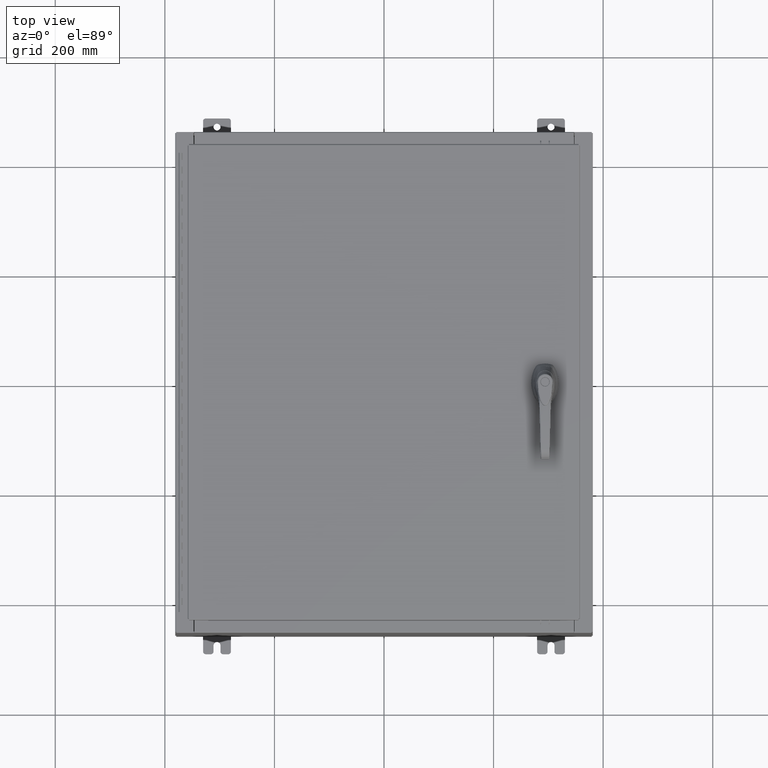
[diagram: clean part render]
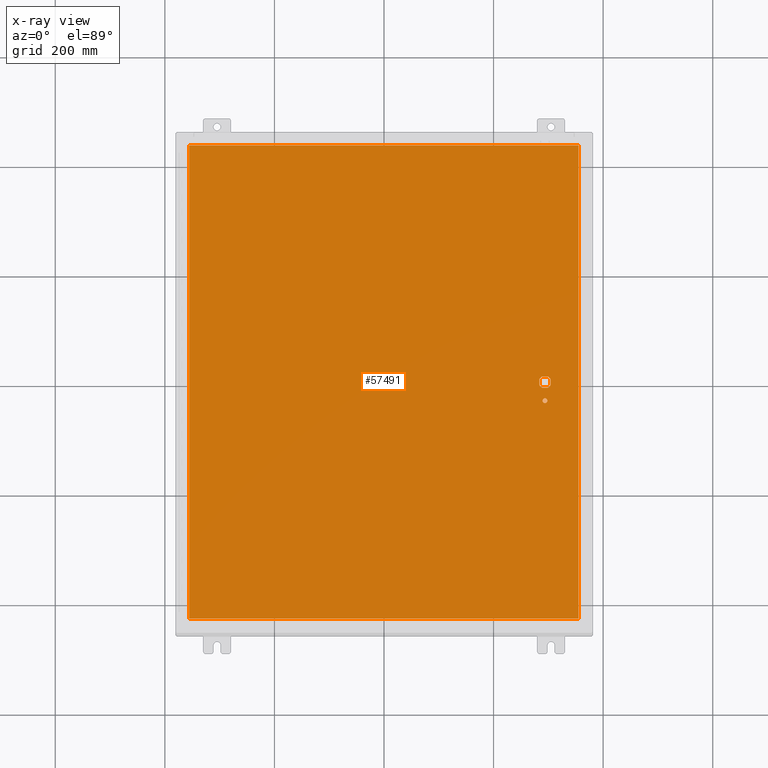
[diagram: x-ray — body ghosted, one internal face saturated and labeled with its STEP entity id]
A machine part, top view, then the same camera in x-ray: the body is ghosted and one INTERNAL B-rep face — a face not visible from any outside direction — is saturated and labeled: STEP entity #57491.
In plain terms, the highlighted planar face has unit normal (0, 0, -1).
Its self-contained STEP definition (entity closure, byte-faithful):
#648 = EDGE_CURVE ( 'NONE', #11602, #36808, #68440, .T. ) ;
#2140 = ORIENTED_EDGE ( 'NONE', *, *, #648, .T. ) ;
#2220 = DIRECTION ( 'NONE',  ( 0.0000000000000000000, 1.000000000000000000, 0.0000000000000000000 ) ) ;
#2813 = DIRECTION ( 'NONE',  ( -1.000000000000000000, 0.0000000000000000000, -0.0000000000000000000 ) ) ;
#4749 = CARTESIAN_POINT ( 'NONE',  ( 13.99029999999999200, -17.00630000000000000, -0.07470000000000019700 ) ) ;
#5164 = VERTEX_POINT ( 'NONE', #42438 ) ;
#5437 = EDGE_CURVE ( 'NONE', #59759, #22250, #50270, .T. ) ;
#5741 = CARTESIAN_POINT ( 'NONE',  ( -13.99030000000000700, -17.00630000000000000, -0.07470000000000000300 ) ) ;
#5778 = EDGE_CURVE ( 'NONE', #88298, #124138, #29412, .T. ) ;
#6575 = DIRECTION ( 'NONE',  ( -0.0000000000000000000, -0.0000000000000000000, 1.000000000000000000 ) ) ;
#6729 = VERTEX_POINT ( 'NONE', #44348 ) ;
#7899 = CIRCLE ( 'NONE', #88935, 0.4499999999999168000 ) ;
#8196 = CARTESIAN_POINT ( 'NONE',  ( 11.17500000000006600, 0.2002273707563075900, -0.07470000000000003000 ) ) ;
#9893 = CARTESIAN_POINT ( 'NONE',  ( 11.98099999999992000, 6.538620706741751200E-014, -0.07470000000000003000 ) ) ;
#10253 = VERTEX_POINT ( 'NONE', #21520 ) ;
#10455 = CARTESIAN_POINT ( 'NONE',  ( 11.57799999999999400, 0.0000000000000000000, -0.07470000000000003000 ) ) ;
#11602 = VERTEX_POINT ( 'NONE', #20144 ) ;
#12996 = CARTESIAN_POINT ( 'NONE',  ( -13.99030000000000700, 17.00630000000000300, -0.07470000000000000300 ) ) ;
#13148 = CARTESIAN_POINT ( 'NONE',  ( 11.37777262924368300, 0.4029999999999252000, -0.07470000000000003000 ) ) ;
#13664 = VERTEX_POINT ( 'NONE', #59369 ) ;
#15475 = ORIENTED_EDGE ( 'NONE', *, *, #124306, .T. ) ;
#17634 = CARTESIAN_POINT ( 'NONE',  ( 11.57799999999999400, 0.0000000000000000000, -0.07470000000000003000 ) ) ;
#19046 = EDGE_LOOP ( 'NONE', ( #51402, #23434 ) ) ;
#20144 = CARTESIAN_POINT ( 'NONE',  ( 11.77822737075630300, 0.4029999999999250300, -0.07470000000000003000 ) ) ;
#20190 = DIRECTION ( 'NONE',  ( -1.000000000000000000, -1.776356839400246700E-015, 0.0000000000000000000 ) ) ;
#20645 = FACE_BOUND ( 'NONE', #34324, .T. ) ;
#20672 = ORIENTED_EDGE ( 'NONE', *, *, #64721, .T. ) ;
#20971 = CARTESIAN_POINT ( 'NONE',  ( 11.17500000000006600, 0.0000000000000000000, -0.07470000000000003000 ) ) ;
#21275 = EDGE_CURVE ( 'NONE', #6729, #76020, #65052, .T. ) ;
#21464 = CIRCLE ( 'NONE', #51426, 0.4499999999999168000 ) ;
#21514 = ORIENTED_EDGE ( 'NONE', *, *, #22743, .T. ) ;
#21520 = CARTESIAN_POINT ( 'NONE',  ( 11.17500000000006600, -0.2002273707563079800, -0.07470000000000003000 ) ) ;
#22250 = VERTEX_POINT ( 'NONE', #107533 ) ;
#22743 = EDGE_CURVE ( 'NONE', #13664, #49090, #84314, .T. ) ;
#23434 = ORIENTED_EDGE ( 'NONE', *, *, #69700, .T. ) ;
#24490 = AXIS2_PLACEMENT_3D ( 'NONE', #50644, #117242, #2813 ) ;
#26452 = VECTOR ( 'NONE', #30092, 39.37007874015748100 ) ;
#27289 = DIRECTION ( 'NONE',  ( -1.000000000000000000, -5.329070518200740300E-015, 0.0000000000000000000 ) ) ;
#28423 = ORIENTED_EDGE ( 'NONE', *, *, #41251, .F. ) ;
#29412 = LINE ( 'NONE', #82272, #63817 ) ;
#30092 = DIRECTION ( 'NONE',  ( 1.000000000000000000, -0.0000000000000000000, -0.0000000000000000000 ) ) ;
#33388 = ORIENTED_EDGE ( 'NONE', *, *, #35231, .F. ) ;
#33569 = VERTEX_POINT ( 'NONE', #8196 ) ;
#34324 = EDGE_LOOP ( 'NONE', ( #20672, #51615, #95410, #2140, #15475, #47439, #68411, #21514 ) ) ;
#35231 = EDGE_CURVE ( 'NONE', #22250, #88298, #113476, .T. ) ;
#36496 = CIRCLE ( 'NONE', #112157, 0.4499999999999168000 ) ;
#36808 = VERTEX_POINT ( 'NONE', #13148 ) ;
#38508 = DIRECTION ( 'NONE',  ( -0.0000000000000000000, -0.0000000000000000000, 1.000000000000000000 ) ) ;
#41069 = PLANE ( 'NONE',  #24490 ) ;
#41251 = EDGE_CURVE ( 'NONE', #124138, #59759, #99654, .T. ) ;
#42438 = CARTESIAN_POINT ( 'NONE',  ( 11.74949999999999400, -1.338000000000000100, -0.07470000000000003000 ) ) ;
#42837 = VECTOR ( 'NONE', #116305, 39.37007874015748100 ) ;
#44348 = CARTESIAN_POINT ( 'NONE',  ( 11.98099999999992000, 0.2002273707563075900, -0.07470000000000003000 ) ) ;
#46001 = FACE_BOUND ( 'NONE', #19046, .T. ) ;
#46220 = DIRECTION ( 'NONE',  ( 1.000000000000000000, 0.0000000000000000000, 0.0000000000000000000 ) ) ;
#47275 = VECTOR ( 'NONE', #2220, 39.37007874015748100 ) ;
#47439 = ORIENTED_EDGE ( 'NONE', *, *, #50121, .T. ) ;
#48396 = CARTESIAN_POINT ( 'NONE',  ( 11.98099999999992000, -0.2002273707563067300, -0.07470000000000003000 ) ) ;
#49090 = VERTEX_POINT ( 'NONE', #96465 ) ;
#49803 = DIRECTION ( 'NONE',  ( -0.0000000000000000000, -0.0000000000000000000, 1.000000000000000000 ) ) ;
#50121 = EDGE_CURVE ( 'NONE', #33569, #10253, #93800, .T. ) ;
#50270 = LINE ( 'NONE', #4749, #47275 ) ;
#50280 = CIRCLE ( 'NONE', #65473, 0.1715000000000011500 ) ;
#50644 = CARTESIAN_POINT ( 'NONE',  ( 0.0000000000000000000, 0.0000000000000000000, -0.07470000000000000300 ) ) ;
#51048 = AXIS2_PLACEMENT_3D ( 'NONE', #107149, #49803, #116812 ) ;
#51402 = ORIENTED_EDGE ( 'NONE', *, *, #60190, .T. ) ;
#51426 = AXIS2_PLACEMENT_3D ( 'NONE', #17634, #84599, #27289 ) ;
#51615 = ORIENTED_EDGE ( 'NONE', *, *, #21275, .F. ) ;
#55047 = DIRECTION ( 'NONE',  ( -0.0000000000000000000, -0.0000000000000000000, 1.000000000000000000 ) ) ;
#57491 = ADVANCED_FACE ( 'NONE', ( #46001, #122480, #20645 ), #41069, .T. ) ;
#58274 = CARTESIAN_POINT ( 'NONE',  ( 13.99029999999999200, 17.00630000000000300, -0.07470000000000129300 ) ) ;
#58779 = VECTOR ( 'NONE', #46220, 39.37007874015748100 ) ;
#59369 = CARTESIAN_POINT ( 'NONE',  ( 11.37777262924368300, -0.4029999999999250300, -0.07470000000000003000 ) ) ;
#59759 = VERTEX_POINT ( 'NONE', #69678 ) ;
#60190 = EDGE_CURVE ( 'NONE', #5164, #78676, #50280, .T. ) ;
#63817 = VECTOR ( 'NONE', #84935, 39.37007874015748100 ) ;
#64011 = CARTESIAN_POINT ( 'NONE',  ( 0.0000000000000000000, 0.4029999999999252000, -0.07470000000000003000 ) ) ;
#64048 = CARTESIAN_POINT ( 'NONE',  ( 11.57799999999999400, 0.0000000000000000000, -0.07470000000000003000 ) ) ;
#64721 = EDGE_CURVE ( 'NONE', #49090, #76020, #36496, .T. ) ;
#65052 = LINE ( 'NONE', #9893, #115933 ) ;
#65248 = DIRECTION ( 'NONE',  ( -1.000000000000000000, 0.0000000000000000000, 0.0000000000000000000 ) ) ;
#65473 = AXIS2_PLACEMENT_3D ( 'NONE', #112352, #55047, #122079 ) ;
#65777 = EDGE_LOOP ( 'NONE', ( #86570, #28423, #75653, #33388 ) ) ;
#67286 = DIRECTION ( 'NONE',  ( 5.457491617345625000E-015, -1.000000000000000000, 0.0000000000000000000 ) ) ;
#68411 = ORIENTED_EDGE ( 'NONE', *, *, #119867, .T. ) ;
#68440 = LINE ( 'NONE', #64011, #87916 ) ;
#69387 = CIRCLE ( 'NONE', #106854, 0.1715000000000011500 ) ;
#69678 = CARTESIAN_POINT ( 'NONE',  ( 13.99029999999999200, -17.00630000000000000, -0.07470000000000000300 ) ) ;
#69700 = EDGE_CURVE ( 'NONE', #78676, #5164, #69387, .T. ) ;
#73665 = DIRECTION ( 'NONE',  ( -1.000000000000000000, -1.776356839400246700E-015, 0.0000000000000000000 ) ) ;
#75653 = ORIENTED_EDGE ( 'NONE', *, *, #5778, .F. ) ;
#76020 = VERTEX_POINT ( 'NONE', #48396 ) ;
#77486 = DIRECTION ( 'NONE',  ( -0.0000000000000000000, -0.0000000000000000000, 1.000000000000000000 ) ) ;
#78676 = VERTEX_POINT ( 'NONE', #119355 ) ;
#82272 = CARTESIAN_POINT ( 'NONE',  ( -13.99030000000000700, 17.00630000000000000, -0.07470000000000019700 ) ) ;
#84314 = LINE ( 'NONE', #84415, #58779 ) ;
#84415 = CARTESIAN_POINT ( 'NONE',  ( 0.0000000000000000000, -0.4029999999999252000, -0.07470000000000003000 ) ) ;
#84599 = DIRECTION ( 'NONE',  ( -0.0000000000000000000, -0.0000000000000000000, 1.000000000000000000 ) ) ;
#84935 = DIRECTION ( 'NONE',  ( 0.0000000000000000000, -1.000000000000000000, 0.0000000000000000000 ) ) ;
#86570 = ORIENTED_EDGE ( 'NONE', *, *, #5437, .F. ) ;
#87165 = DIRECTION ( 'NONE',  ( -1.000000000000000000, -0.0000000000000000000, -0.0000000000000000000 ) ) ;
#87374 = CARTESIAN_POINT ( 'NONE',  ( -13.99030000000000700, -17.00630000000000000, -0.07470000000000019700 ) ) ;
#87916 = VECTOR ( 'NONE', #65248, 39.37007874015748100 ) ;
#88094 = VECTOR ( 'NONE', #87165, 39.37007874015748100 ) ;
#88298 = VERTEX_POINT ( 'NONE', #12996 ) ;
#88935 = AXIS2_PLACEMENT_3D ( 'NONE', #10455, #77486, #20190 ) ;
#93800 = LINE ( 'NONE', #20971, #42837 ) ;
#95410 = ORIENTED_EDGE ( 'NONE', *, *, #102034, .T. ) ;
#95807 = CARTESIAN_POINT ( 'NONE',  ( 11.57799999999999400, -1.338000000000000100, -0.07470000000000003000 ) ) ;
#96465 = CARTESIAN_POINT ( 'NONE',  ( 11.77822737075630300, -0.4029999999999252000, -0.07470000000000003000 ) ) ;
#99654 = LINE ( 'NONE', #87374, #26452 ) ;
#102034 = EDGE_CURVE ( 'NONE', #6729, #11602, #103044, .T. ) ;
#103044 = CIRCLE ( 'NONE', #51048, 0.4499999999999168000 ) ;
#105400 = DIRECTION ( 'NONE',  ( -1.000000000000000000, 0.0000000000000000000, 0.0000000000000000000 ) ) ;
#106854 = AXIS2_PLACEMENT_3D ( 'NONE', #95807, #38508, #105400 ) ;
#107149 = CARTESIAN_POINT ( 'NONE',  ( 11.57799999999999400, 0.0000000000000000000, -0.07470000000000003000 ) ) ;
#107533 = CARTESIAN_POINT ( 'NONE',  ( 13.99029999999999200, 17.00630000000000300, -0.07470000000000000300 ) ) ;
#112157 = AXIS2_PLACEMENT_3D ( 'NONE', #64048, #6575, #73665 ) ;
#112352 = CARTESIAN_POINT ( 'NONE',  ( 11.57799999999999400, -1.338000000000000100, -0.07470000000000003000 ) ) ;
#113476 = LINE ( 'NONE', #58274, #88094 ) ;
#115933 = VECTOR ( 'NONE', #67286, 39.37007874015748100 ) ;
#116305 = DIRECTION ( 'NONE',  ( 0.0000000000000000000, -1.000000000000000000, 0.0000000000000000000 ) ) ;
#116812 = DIRECTION ( 'NONE',  ( -1.000000000000000000, -5.329070518200740300E-015, 0.0000000000000000000 ) ) ;
#117242 = DIRECTION ( 'NONE',  ( 0.0000000000000000000, 0.0000000000000000000, -1.000000000000000000 ) ) ;
#119355 = CARTESIAN_POINT ( 'NONE',  ( 11.40649999999999200, -1.338000000000000100, -0.07470000000000003000 ) ) ;
#119867 = EDGE_CURVE ( 'NONE', #10253, #13664, #7899, .T. ) ;
#122079 = DIRECTION ( 'NONE',  ( -1.000000000000000000, 0.0000000000000000000, 0.0000000000000000000 ) ) ;
#122480 = FACE_OUTER_BOUND ( 'NONE', #65777, .T. ) ;
#124138 = VERTEX_POINT ( 'NONE', #5741 ) ;
#124306 = EDGE_CURVE ( 'NONE', #36808, #33569, #21464, .T. ) ;